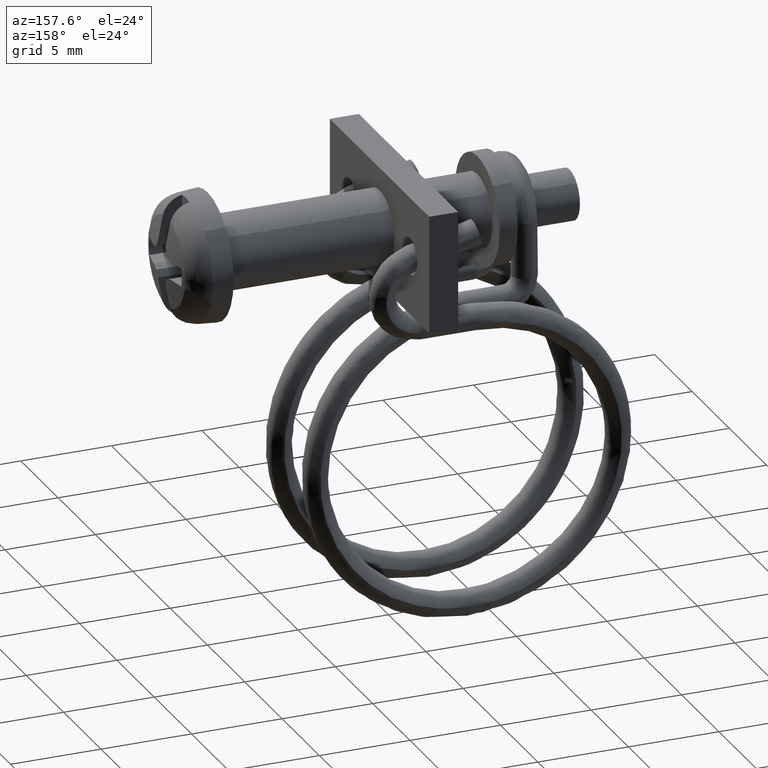
[diagram: clean part render]
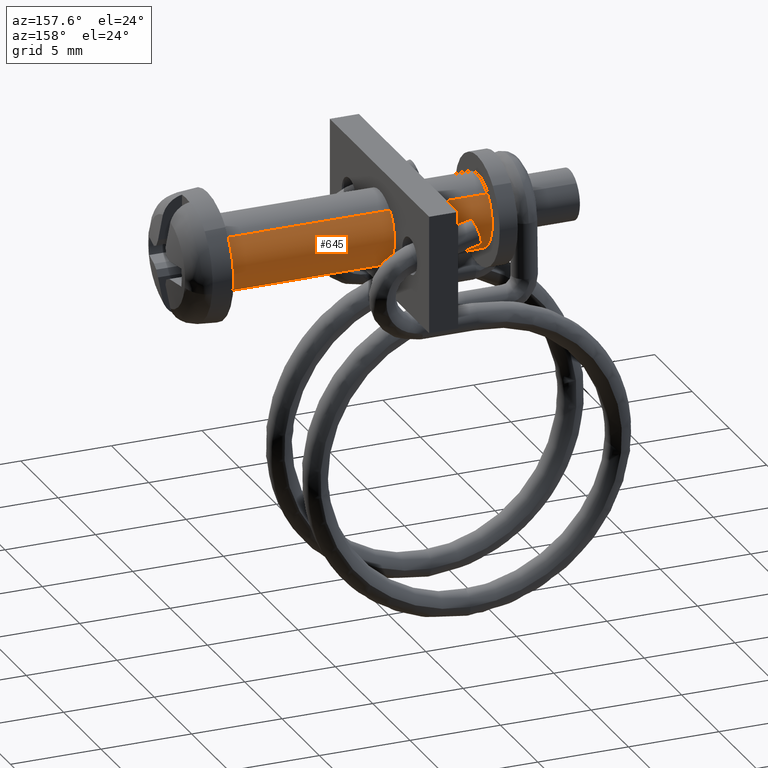
[diagram: same view with one face highlighted and labeled with its STEP entity id]
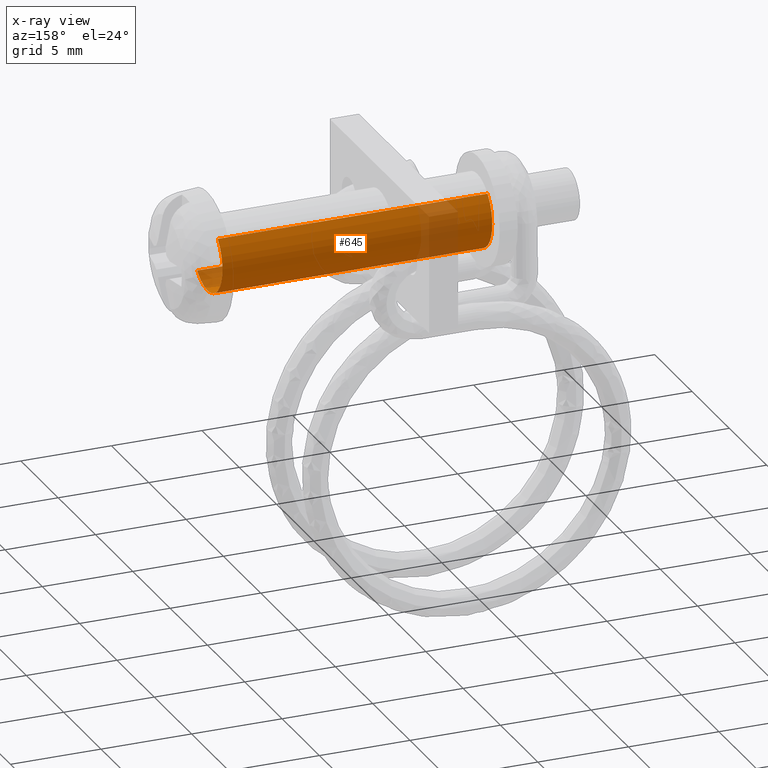
[diagram: x-ray of the same camera — body ghosted, the highlighted face saturated]
A machine part, auxiliary view. The second image highlights one B-rep face of the part: STEP entity #645.
The next image is the same camera in x-ray: the body ghosted, the highlighted face saturated — about 16% of this face is hidden behind the body in this view.
In plain terms, the highlighted face is a freeform B-spline surface patch.
Its self-contained STEP definition (entity closure, byte-faithful):
#488=CARTESIAN_POINT('',(-14.900000000000000,1.999999999999989,-0.000000209591262));
#489=VERTEX_POINT('',#488);
#490=CARTESIAN_POINT('',(-14.900000000000000,0.0,-2.0));
#491=VERTEX_POINT('',#490);
#492=CARTESIAN_POINT('',(-14.900000000000000,1.999999999999989,-0.000000209591262));
#493=CARTESIAN_POINT('',(-14.899999999999981,2.000086604161799,-0.196358214211514));
#494=CARTESIAN_POINT('',(-14.900000000000031,1.950191105268452,-0.531739532128794));
#495=CARTESIAN_POINT('',(-14.900000000000000,1.780857832945531,-0.933481251881965));
#496=CARTESIAN_POINT('',(-14.899999999999959,1.561672126132470,-1.270441771417721));
#497=CARTESIAN_POINT('',(-14.900000000000119,1.279600086115891,-1.559523805104291));
#498=CARTESIAN_POINT('',(-14.899999999999940,0.912693169355558,-1.795010995231050));
#499=CARTESIAN_POINT('',(-14.900000000000061,0.490844593089247,-1.957733264280412));
#500=CARTESIAN_POINT('',(-14.899999999999990,0.179992780306486,-2.000063496998758));
#501=CARTESIAN_POINT('',(-14.900000000000000,0.0,-2.0));
#502=B_SPLINE_CURVE_WITH_KNOTS('',3,(#492,#493,#494,#495,#496,#497,#498,#499,#500,#501),.UNSPECIFIED.,.F.,.U.,(4,1,1,1,1,1,1,4),(0.000000018312265,0.589050127898723,1.006300196758445,1.300829799261217,1.791693132139717,2.208944060519653,2.601650619537120,3.141612247620818),.UNSPECIFIED.);
#503=EDGE_CURVE('',#489,#491,#502,.T.);
#505=CARTESIAN_POINT('',(-14.899999999999929,-1.376709116548123,-1.450748702949365));
#506=VERTEX_POINT('',#505);
#507=CARTESIAN_POINT('',(-14.900000000000000,0.0,-2.0));
#508=CARTESIAN_POINT('',(-14.900000000000000,-0.118628267920296,-2.000008730996382));
#509=CARTESIAN_POINT('',(-14.899999999999981,-0.363791183721174,-1.978129297130596));
#510=CARTESIAN_POINT('',(-14.899999999999940,-0.692754529978495,-1.886081326142525));
#511=CARTESIAN_POINT('',(-14.899999999999970,-1.044432232506077,-1.720976549413380));
#512=CARTESIAN_POINT('',(-14.899999999999901,-1.256266372769596,-1.565106625718483));
#513=CARTESIAN_POINT('',(-14.899999999999929,-1.376709116548123,-1.450748702949365));
#514=B_SPLINE_CURVE_WITH_KNOTS('',3,(#507,#508,#509,#510,#511,#512,#513),.UNSPECIFIED.,.F.,.U.,(4,1,1,1,4),(4.908909E-009,0.355885703234474,0.735499650239846,1.020205124491042,1.518445333981149),.UNSPECIFIED.);
#515=EDGE_CURVE('',#491,#506,#514,.T.);
#545=CARTESIAN_POINT('',(-14.899999999999929,1.376709116548122,1.450748702949364));
#546=VERTEX_POINT('',#545);
#557=CARTESIAN_POINT('',(-14.899999999999929,1.376709116548122,1.450748702949364));
#558=CARTESIAN_POINT('',(-14.899999999999940,1.505524522969870,1.328574633442651));
#559=CARTESIAN_POINT('',(-14.899999999999951,1.682096996298294,1.109401525579337));
#560=CARTESIAN_POINT('',(-14.899999999999940,1.846913407063981,0.784205953639854));
#561=CARTESIAN_POINT('',(-14.900000000000070,1.964865444677486,0.439579990391878));
#562=CARTESIAN_POINT('',(-14.899999999999920,2.000061317674788,0.177540768768904));
#563=CARTESIAN_POINT('',(-14.900000000000000,1.999999999999989,-0.000000209591262));
#564=B_SPLINE_CURVE_WITH_KNOTS('',3,(#557,#558,#559,#560,#561,#562,#563),.UNSPECIFIED.,.F.,.U.,(4,1,1,1,4),(5.621714E-009,0.532603216605950,0.836942840546071,1.090564054955974,1.623167265942890),.UNSPECIFIED.);
#565=EDGE_CURVE('',#546,#489,#564,.T.);
#570=CARTESIAN_POINT('',(0.372500000000000,1.376709151387508,1.450748742024575));
#571=CARTESIAN_POINT('',(0.372500000000000,2.827457893412082,0.074039590637067));
#572=CARTESIAN_POINT('',(0.372500000000000,1.450748742024575,-1.376709151387508));
#573=CARTESIAN_POINT('',(0.372500000000000,0.074039590637067,-2.827457893412082));
#574=CARTESIAN_POINT('',(0.372500000000000,-1.376709151387508,-1.450748742024575));
#575=CARTESIAN_POINT('',(-15.281812499999999,1.376709151387508,1.450748742024575));
#576=CARTESIAN_POINT('',(-15.281812500000004,2.827457893412082,0.074039590637067));
#577=CARTESIAN_POINT('',(-15.281812499999999,1.450748742024575,-1.376709151387508));
#578=CARTESIAN_POINT('',(-15.281812500000004,0.074039590637067,-2.827457893412082));
#579=CARTESIAN_POINT('',(-15.281812499999999,-1.376709151387508,-1.450748742024575));
#587=(BOUNDED_SURFACE()B_SPLINE_SURFACE(2,1,((#570,#575),(#571,#576),(#572,#577),(#573,#578),(#574,#579)),.UNSPECIFIED.,.F.,.F.,.U.)B_SPLINE_SURFACE_WITH_KNOTS((3,2,3),(2,2),(0.0,3.313708498984759,6.627416997969519),(0.0,15.654312500000000),.UNSPECIFIED.)GEOMETRIC_REPRESENTATION_ITEM()RATIONAL_B_SPLINE_SURFACE(((1.0,1.0),(0.707106781186548,0.707106781186548),(1.0,1.0),(0.707106781186548,0.707106781186548),(1.0,1.0)))REPRESENTATION_ITEM('')SURFACE());
#588=ORIENTED_EDGE('',*,*,#565,.F.);
#589=CARTESIAN_POINT('',(-3.330669E-016,1.376709116533673,1.450748702963076));
#590=VERTEX_POINT('',#589);
#591=CARTESIAN_POINT('',(-3.330669E-016,1.376709116533673,1.450748702963076));
#592=CARTESIAN_POINT('',(-14.899999999999929,1.376709116548122,1.450748702949364));
#593=QUASI_UNIFORM_CURVE('',1,(#591,#592),.UNSPECIFIED.,.F.,.U.);
#594=EDGE_CURVE('',#590,#546,#593,.T.);
#595=ORIENTED_EDGE('',*,*,#594,.F.);
#596=CARTESIAN_POINT('',(0.0,1.999999999999989,-0.000000209591262));
#597=VERTEX_POINT('',#596);
#598=CARTESIAN_POINT('',(-3.330669E-016,1.376709116533673,1.450748702963076));
#599=CARTESIAN_POINT('',(-3.183713E-016,1.444165962454734,1.386738821529698));
#600=CARTESIAN_POINT('',(-2.825123E-016,1.587310116871696,1.230546507391838));
#601=CARTESIAN_POINT('',(-2.223395E-016,1.760281932330371,0.968450307813247));
#602=CARTESIAN_POINT('',(-1.511968E-016,1.898094098983311,0.658572132225838));
#603=CARTESIAN_POINT('',(-7.763515E-017,1.981142276600499,0.338157385966825));
#604=CARTESIAN_POINT('',(-2.523147E-017,2.000007462299437,0.109901231860645));
#605=CARTESIAN_POINT('',(0.0,1.999999999999989,-0.000000209591262));
#606=B_SPLINE_CURVE_WITH_KNOTS('',3,(#598,#599,#600,#601,#602,#603,#604,#605),.UNSPECIFIED.,.F.,.U.,(4,1,1,1,1,4),(5.621649E-009,0.278980424798866,0.634050665856611,0.938390788752119,1.293461529721567,1.623167265962812),.UNSPECIFIED.);
#607=EDGE_CURVE('',#590,#597,#606,.T.);
#608=ORIENTED_EDGE('',*,*,#607,.T.);
#609=CARTESIAN_POINT('',(0.0,0.0,-2.0));
#610=VERTEX_POINT('',#609);
#611=CARTESIAN_POINT('',(0.0,1.999999999999989,-0.000000209591262));
#612=CARTESIAN_POINT('',(0.0,2.000086611577145,-0.196358208212146));
#613=CARTESIAN_POINT('',(0.0,1.950191090840177,-0.531739542510388));
#614=CARTESIAN_POINT('',(0.0,1.780857837266781,-0.933481263478303));
#615=CARTESIAN_POINT('',(0.0,1.561672110641088,-1.270441714092188));
#616=CARTESIAN_POINT('',(0.0,1.279600122256410,-1.559523966722637));
#617=CARTESIAN_POINT('',(0.0,0.912693110687942,-1.795010718456910));
#618=CARTESIAN_POINT('',(0.0,0.490844689309212,-1.957733762714691));
#619=CARTESIAN_POINT('',(0.0,0.179992684217948,-2.000062948133521));
#620=CARTESIAN_POINT('',(0.0,0.0,-2.0));
#621=B_SPLINE_CURVE_WITH_KNOTS('',3,(#611,#612,#613,#614,#615,#616,#617,#618,#619,#620),.UNSPECIFIED.,.F.,.U.,(4,1,1,1,1,1,1,4),(0.000000018312265,0.589050127898723,1.006300196758445,1.300829799261217,1.791693132139717,2.208944060519653,2.601650619537120,3.141612247620818),.UNSPECIFIED.);
#622=EDGE_CURVE('',#597,#610,#621,.T.);
#623=ORIENTED_EDGE('',*,*,#622,.T.);
#624=CARTESIAN_POINT('',(-3.330669E-016,-1.376709116533674,-1.450748702963078));
#625=VERTEX_POINT('',#624);
#626=CARTESIAN_POINT('',(0.0,0.0,-2.0));
#627=CARTESIAN_POINT('',(-3.635365E-017,-0.150265326086493,-2.000032640080228));
#628=CARTESIAN_POINT('',(-1.033155E-016,-0.427047521107737,-1.968650982064684));
#629=CARTESIAN_POINT('',(-1.890528E-016,-0.781436918494109,-1.851100084908985));
#630=CARTESIAN_POINT('',(-2.653594E-016,-1.096844867365941,-1.684320269474375));
#631=CARTESIAN_POINT('',(-3.094762E-016,-1.279198374104567,-1.543309525063598));
#632=CARTESIAN_POINT('',(-3.330669E-016,-1.376709116533674,-1.450748702963078));
#633=B_SPLINE_CURVE_WITH_KNOTS('',3,(#626,#627,#628,#629,#630,#631,#632),.UNSPECIFIED.,.F.,.U.,(4,1,1,1,4),(4.908671E-009,0.450789363908874,0.830395756284165,1.115108148693105,1.518445333961231),.UNSPECIFIED.);
#634=EDGE_CURVE('',#610,#625,#633,.T.);
#635=ORIENTED_EDGE('',*,*,#634,.T.);
#636=CARTESIAN_POINT('',(-3.330669E-016,-1.376709116533674,-1.450748702963078));
#637=CARTESIAN_POINT('',(-14.899999999999929,-1.376709116548123,-1.450748702949365));
#638=QUASI_UNIFORM_CURVE('',1,(#636,#637),.UNSPECIFIED.,.F.,.U.);
#639=EDGE_CURVE('',#625,#506,#638,.T.);
#640=ORIENTED_EDGE('',*,*,#639,.T.);
#641=ORIENTED_EDGE('',*,*,#515,.F.);
#642=ORIENTED_EDGE('',*,*,#503,.F.);
#643=EDGE_LOOP('',(#588,#595,#608,#623,#635,#640,#641,#642));
#644=FACE_OUTER_BOUND('',#643,.T.);
#645=ADVANCED_FACE('',(#644),#587,.T.);